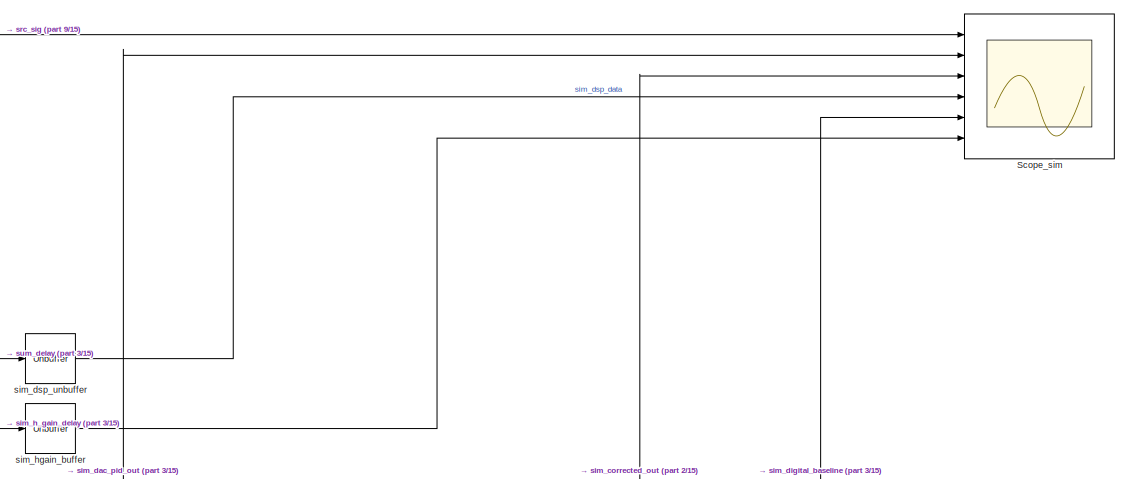
[diagram: root canvas - part 1/15, top right region]
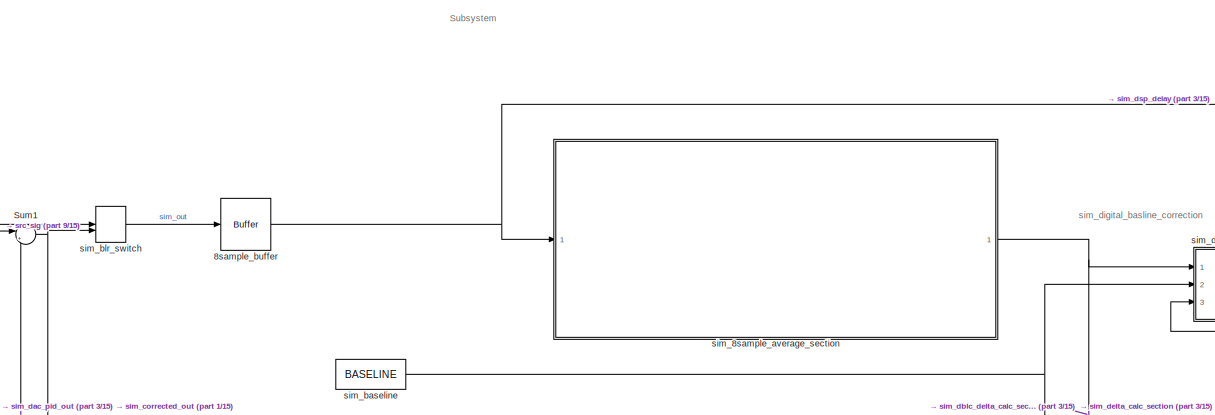
[diagram: root canvas - part 2/15, top center region]
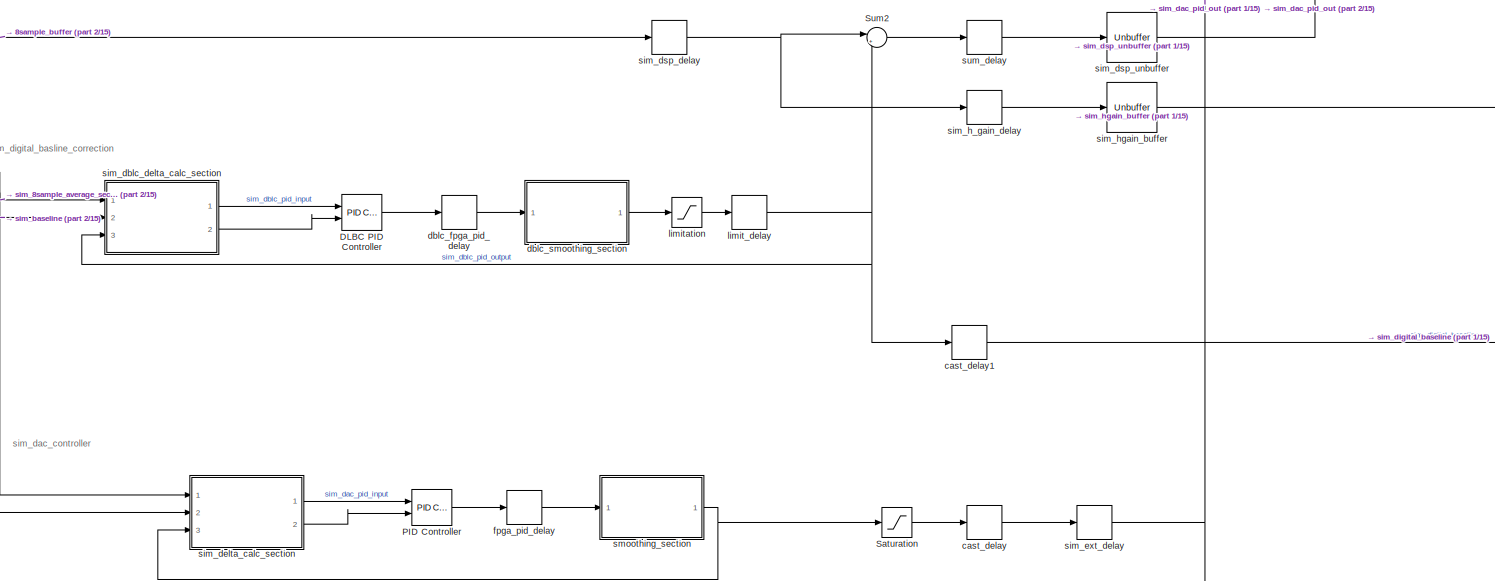
[diagram: root canvas - part 3/15, top center region]
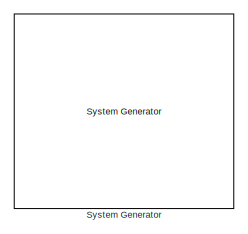
[diagram: root canvas - part 4/15, top left region]
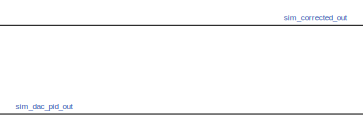
[diagram: root canvas - part 5/15, top center region]
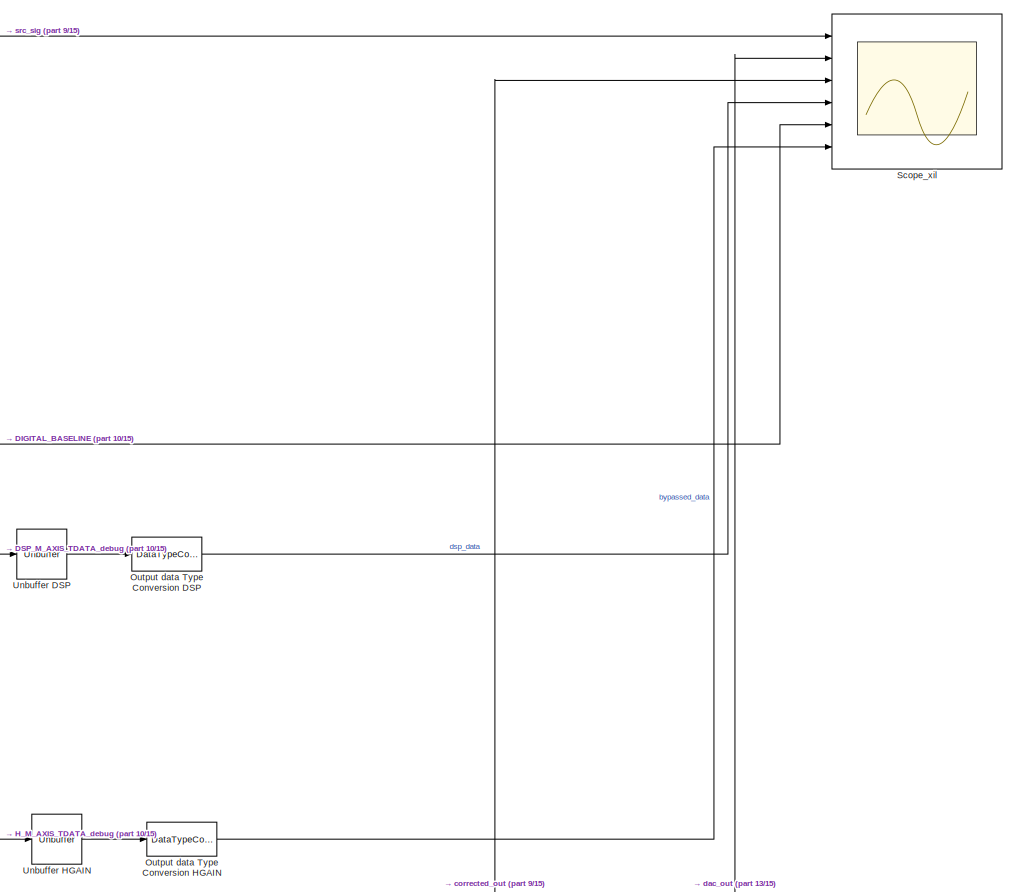
[diagram: root canvas - part 6/15, middle right region]
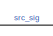
[diagram: root canvas - part 7/15, central region]
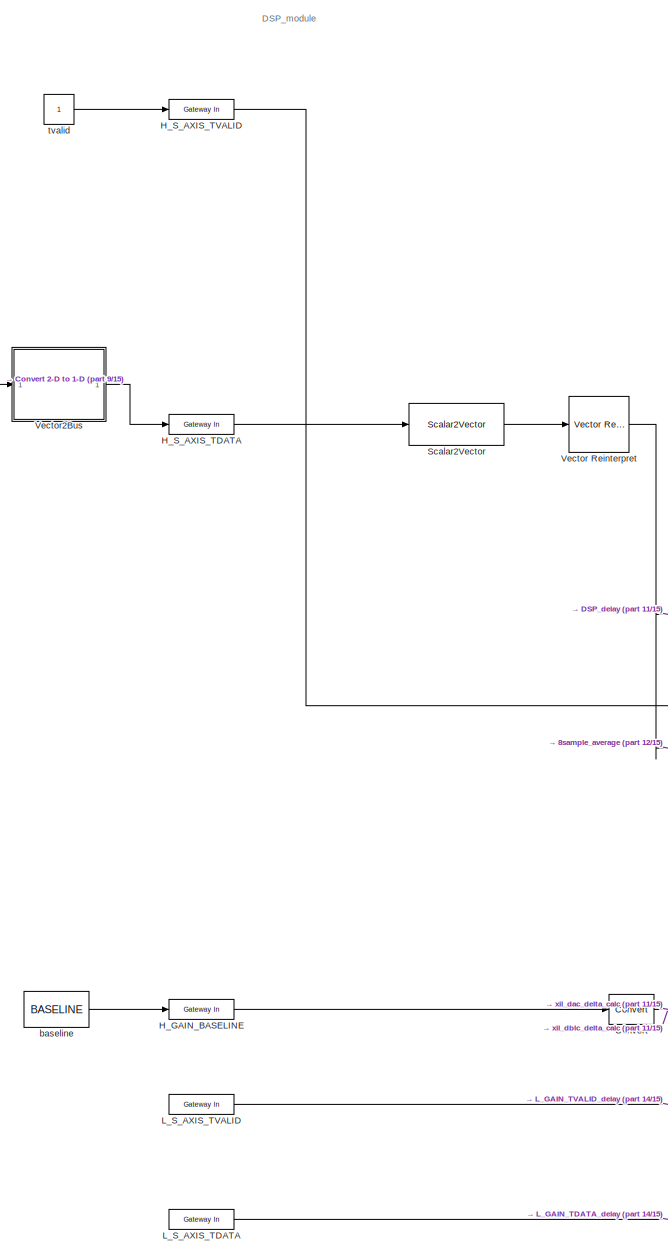
[diagram: root canvas - part 8/15, middle left region]
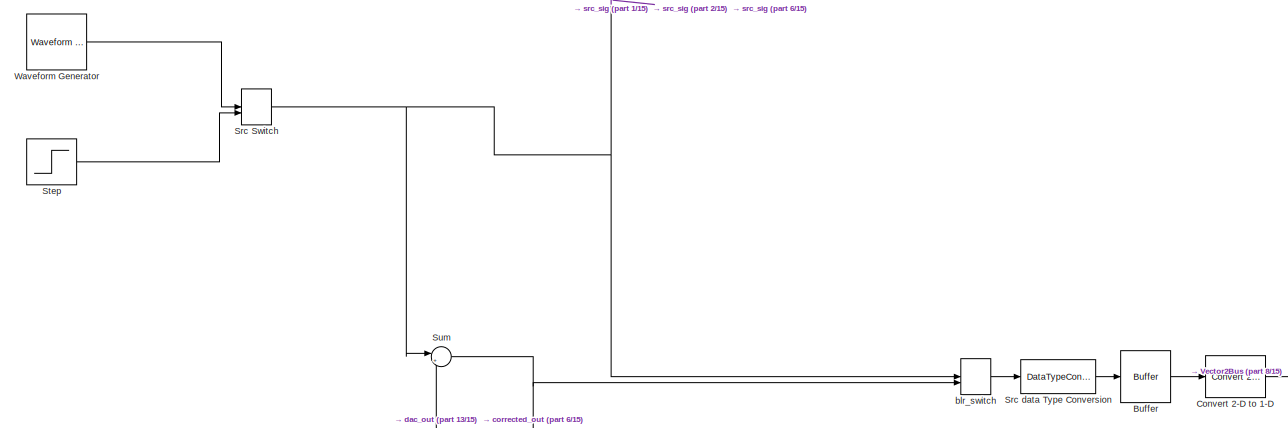
[diagram: root canvas - part 9/15, middle left region]
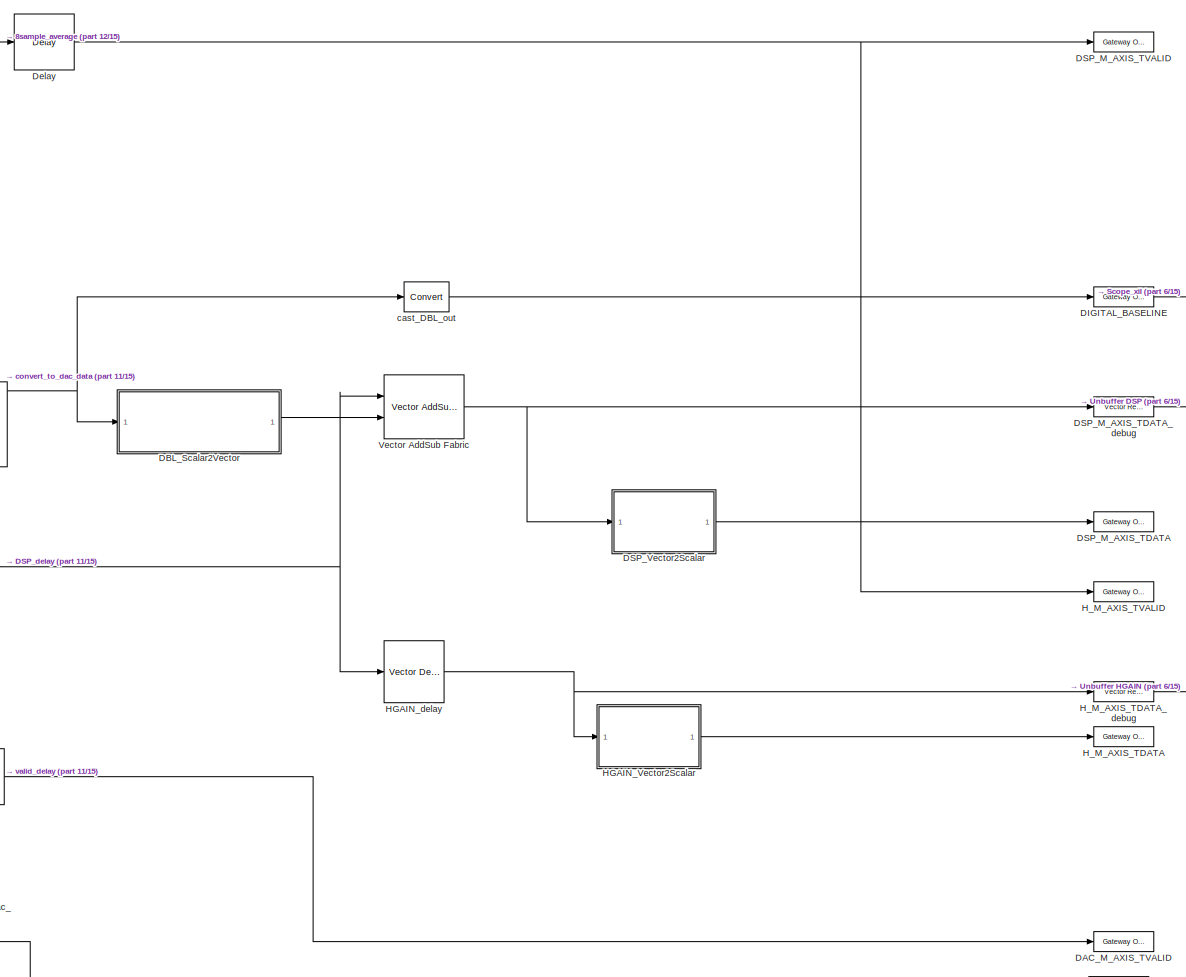
[diagram: root canvas - part 10/15, middle right region]
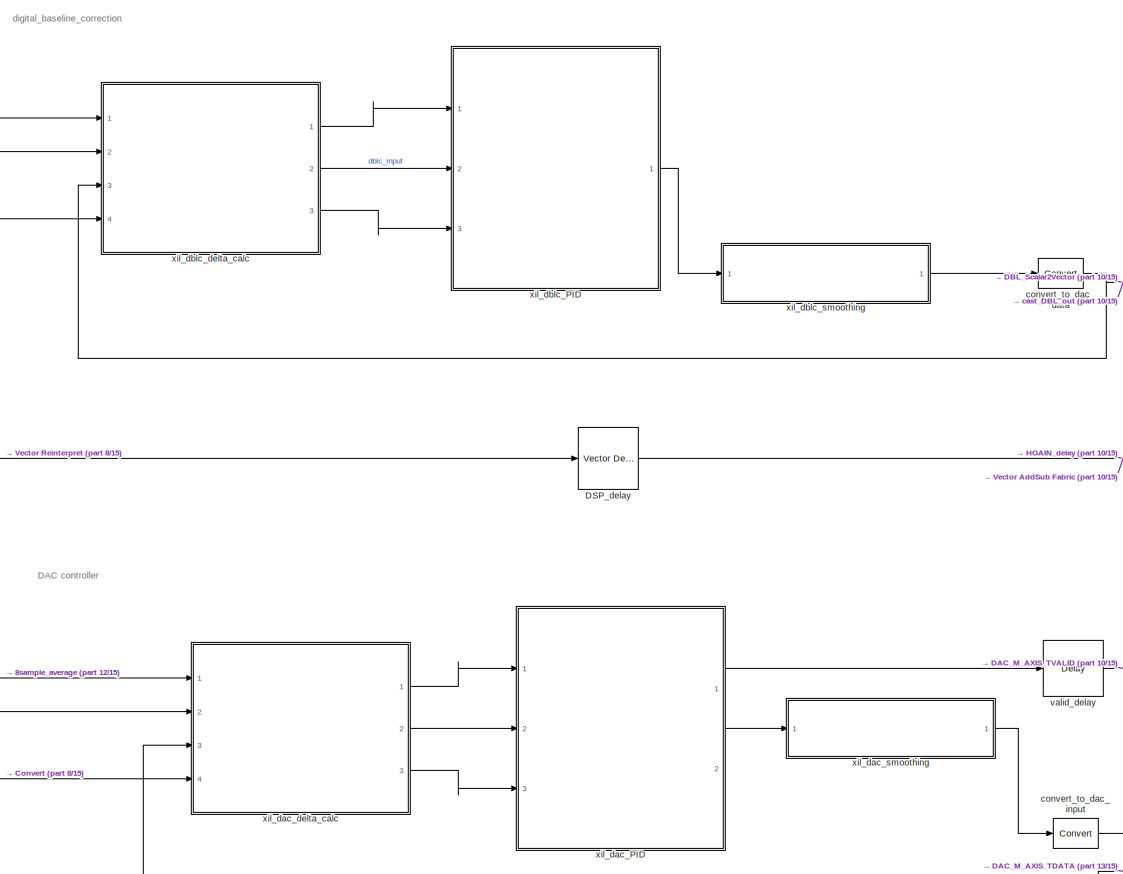
[diagram: root canvas - part 11/15, central region]
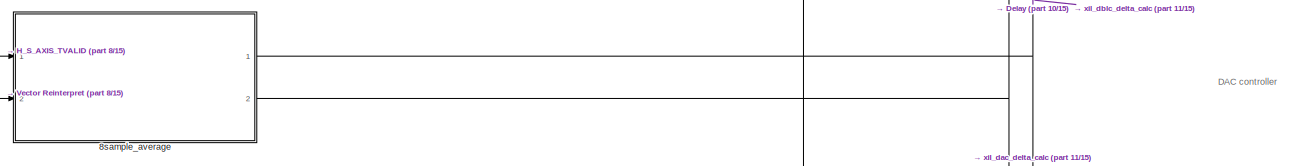
[diagram: root canvas - part 12/15, central region]
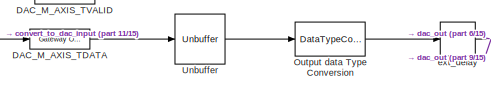
[diagram: root canvas - part 13/15, bottom right region]
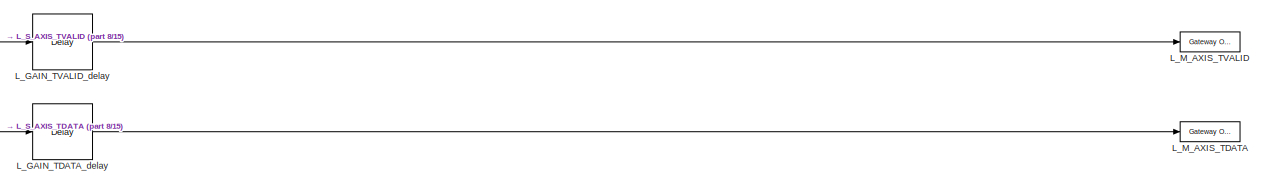
[diagram: root canvas - part 14/15, bottom right region]
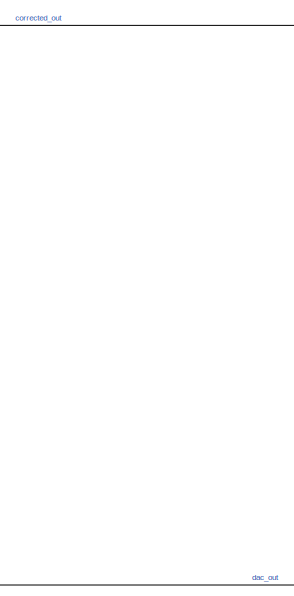
[diagram: root canvas - part 15/15, bottom center region]
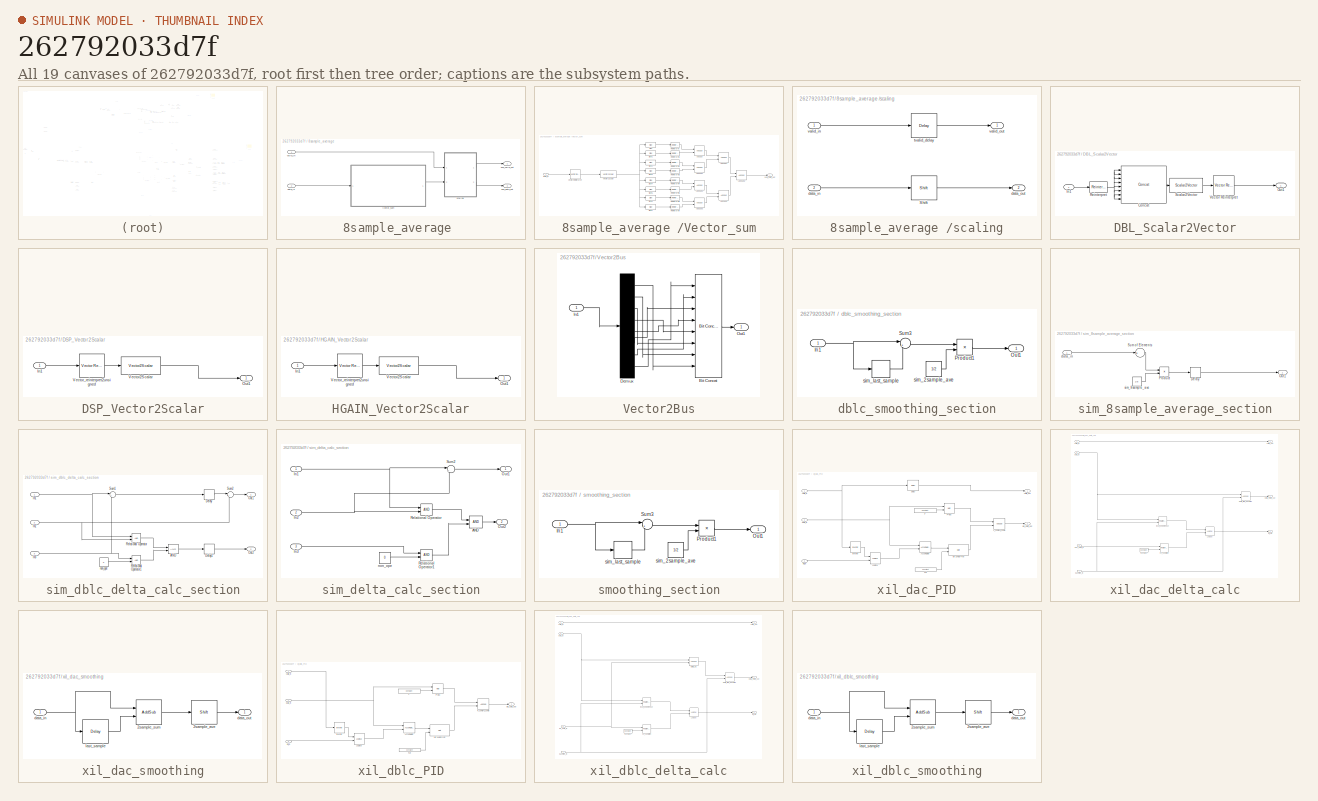
[diagram: thumbnail index - all 19 canvases of the model, root first then tree order]
MODEL slx_262792033d7f
KIND model
CONFIG AbsTol = auto
CONFIG EnableMultiTasking = off
CONFIG FixedStep = auto
CONFIG MaxStep = auto
CONFIG MinStep = auto
CONFIG RelTol = 1e-3
CONFIG SampleTimeConstraint = Unconstrained
CONFIG Solver = VariableStepAuto
CONFIG SolverName = VariableStepAuto
CONFIG StartTime = 0.0
CONFIG StopTime = 100e-6
BLOCK [Reference]  System Generator  REF=xbsIndex_r4/ System Generator
  AttributesFormatString = System\nGenerator
  Ports = []
  SourceBlock = xbsIndex_r4/ System Generator
  SourceType = Xilinx System Generator Block
  Tag = genX
  UserDataPersistent = on
BLOCK [SubSystem] 8sample_average 
  Ports = [2, 2]
  RequestExecContextInheritance = off
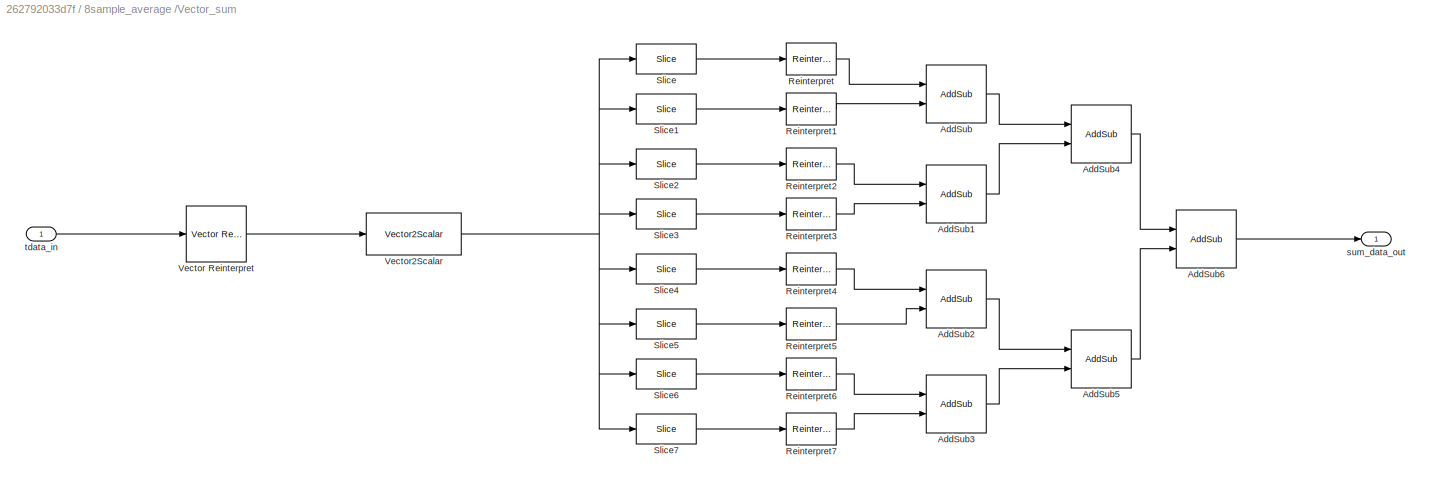
BLOCK [SubSystem] 8sample_average /Vector_sum
  Ports = [1, 1]
  RequestExecContextInheritance = off
BLOCK [Reference] 8sample_average /Vector_sum/AddSub  REF=xbsIndex_r4/AddSub
  Ports = [2, 1]
  SourceBlock = xbsIndex_r4/AddSub
  SourceType = Xilinx Adder/Subtracter Block
BLOCK [Reference] 8sample_average /Vector_sum/AddSub1  REF=xbsIndex_r4/AddSub
  Ports = [2, 1]
  SourceBlock = xbsIndex_r4/AddSub
  SourceType = Xilinx Adder/Subtracter Block
BLOCK [Reference] 8sample_average /Vector_sum/AddSub2  REF=xbsIndex_r4/AddSub
  Ports = [2, 1]
  SourceBlock = xbsIndex_r4/AddSub
  SourceType = Xilinx Adder/Subtracter Block
BLOCK [Reference] 8sample_average /Vector_sum/AddSub3  REF=xbsIndex_r4/AddSub
  Ports = [2, 1]
  SourceBlock = xbsIndex_r4/AddSub
  SourceType = Xilinx Adder/Subtracter Block
BLOCK [Reference] 8sample_average /Vector_sum/AddSub4  REF=xbsIndex_r4/AddSub
  Ports = [2, 1]
  SourceBlock = xbsIndex_r4/AddSub
  SourceType = Xilinx Adder/Subtracter Block
BLOCK [Reference] 8sample_average /Vector_sum/AddSub5  REF=xbsIndex_r4/AddSub
  Ports = [2, 1]
  SourceBlock = xbsIndex_r4/AddSub
  SourceType = Xilinx Adder/Subtracter Block
BLOCK [Reference] 8sample_average /Vector_sum/AddSub6  REF=xbsIndex_r4/AddSub
  Ports = [2, 1]
  SourceBlock = xbsIndex_r4/AddSub
  SourceType = Xilinx Adder/Subtracter Block
BLOCK [Reference] 8sample_average /Vector_sum/Reinterpret  REF=xbsIndex_r4/Reinterpret
  Ports = [1, 1]
  SourceBlock = xbsIndex_r4/Reinterpret
  SourceType = Xilinx Type Reinterpreter Block
BLOCK [Reference] 8sample_average /Vector_sum/Reinterpret1  REF=xbsIndex_r4/Reinterpret
  Ports = [1, 1]
  SourceBlock = xbsIndex_r4/Reinterpret
  SourceType = Xilinx Type Reinterpreter Block
BLOCK [Reference] 8sample_average /Vector_sum/Reinterpret2  REF=xbsIndex_r4/Reinterpret
  Ports = [1, 1]
  SourceBlock = xbsIndex_r4/Reinterpret
  SourceType = Xilinx Type Reinterpreter Block
BLOCK [Reference] 8sample_average /Vector_sum/Reinterpret3  REF=xbsIndex_r4/Reinterpret
  Ports = [1, 1]
  SourceBlock = xbsIndex_r4/Reinterpret
  SourceType = Xilinx Type Reinterpreter Block
BLOCK [Reference] 8sample_average /Vector_sum/Reinterpret4  REF=xbsIndex_r4/Reinterpret
  Ports = [1, 1]
  SourceBlock = xbsIndex_r4/Reinterpret
  SourceType = Xilinx Type Reinterpreter Block
BLOCK [Reference] 8sample_average /Vector_sum/Reinterpret5  REF=xbsIndex_r4/Reinterpret
  Ports = [1, 1]
  SourceBlock = xbsIndex_r4/Reinterpret
  SourceType = Xilinx Type Reinterpreter Block
BLOCK [Reference] 8sample_average /Vector_sum/Reinterpret6  REF=xbsIndex_r4/Reinterpret
  Ports = [1, 1]
  SourceBlock = xbsIndex_r4/Reinterpret
  SourceType = Xilinx Type Reinterpreter Block
BLOCK [Reference] 8sample_average /Vector_sum/Reinterpret7  REF=xbsIndex_r4/Reinterpret
  Ports = [1, 1]
  SourceBlock = xbsIndex_r4/Reinterpret
  SourceType = Xilinx Type Reinterpreter Block
BLOCK [Reference] 8sample_average /Vector_sum/Slice  REF=xbsIndex_r4/Slice
  Ports = [1, 1]
  SourceBlock = xbsIndex_r4/Slice
  SourceType = Xilinx Bit Slice Extractor Block
BLOCK [Reference] 8sample_average /Vector_sum/Slice1  REF=xbsIndex_r4/Slice
  Ports = [1, 1]
  SourceBlock = xbsIndex_r4/Slice
  SourceType = Xilinx Bit Slice Extractor Block
BLOCK [Reference] 8sample_average /Vector_sum/Slice2  REF=xbsIndex_r4/Slice
  Ports = [1, 1]
  SourceBlock = xbsIndex_r4/Slice
  SourceType = Xilinx Bit Slice Extractor Block
BLOCK [Reference] 8sample_average /Vector_sum/Slice3  REF=xbsIndex_r4/Slice
  Ports = [1, 1]
  SourceBlock = xbsIndex_r4/Slice
  SourceType = Xilinx Bit Slice Extractor Block
BLOCK [Reference] 8sample_average /Vector_sum/Slice4  REF=xbsIndex_r4/Slice
  Ports = [1, 1]
  SourceBlock = xbsIndex_r4/Slice
  SourceType = Xilinx Bit Slice Extractor Block
BLOCK [Reference] 8sample_average /Vector_sum/Slice5  REF=xbsIndex_r4/Slice
  Ports = [1, 1]
  SourceBlock = xbsIndex_r4/Slice
  SourceType = Xilinx Bit Slice Extractor Block
BLOCK [Reference] 8sample_average /Vector_sum/Slice6  REF=xbsIndex_r4/Slice
  Ports = [1, 1]
  SourceBlock = xbsIndex_r4/Slice
  SourceType = Xilinx Bit Slice Extractor Block
BLOCK [Reference] 8sample_average /Vector_sum/Slice7  REF=xbsIndex_r4/Slice
  Ports = [1, 1]
  SourceBlock = xbsIndex_r4/Slice
  SourceType = Xilinx Bit Slice Extractor Block
BLOCK [Reference] 8sample_average /Vector_sum/Vector Reinterpret  REF=xrbsSSR_Library/Vector Reinterpret
  Ports = [1, 1]
  SourceBlock = xrbsSSR_Library/Vector Reinterpret
  SourceProductName = Xilinx SSR Blockset
  SourceType = Xilinx Vector Type Reinterpreter Block
BLOCK [Reference] 8sample_average /Vector_sum/Vector2Scalar  REF=xrbsSSR_Library/Vector2Scalar
  Ports = [1, 1]
  SourceBlock = xrbsSSR_Library/Vector2Scalar
  SourceProductName = Xilinx SSR Blockset
  SourceType = Xilinx Vector2Scalar Block
BLOCK [Outport] 8sample_average /Vector_sum/sum_data_out
  IconDisplay = Port number
  OutDataTypeStr = fixdt(1,19,4)
BLOCK [Inport] 8sample_average /Vector_sum/tdata_in
  IconDisplay = Port number
BLOCK [Outport] 8sample_average /ave_data_out
  IconDisplay = Port number
  Port = 2
BLOCK [Outport] 8sample_average /ave_valid_out
  IconDisplay = Port number
BLOCK [Inport] 8sample_average /data_in
  IconDisplay = Port number
  Port = 2
BLOCK [SubSystem] 8sample_average /scaling
  Ports = [2, 2]
  RequestExecContextInheritance = off
BLOCK [Reference] 8sample_average /scaling/Shift  REF=xbsIndex_r4/Shift
  Ports = [1, 1]
  SourceBlock = xbsIndex_r4/Shift
  SourceType = Xilinx Binary Shift Operator Block
BLOCK [Inport] 8sample_average /scaling/data_in
  IconDisplay = Port number
  Port = 2
BLOCK [Outport] 8sample_average /scaling/data_out
  IconDisplay = Port number
  Port = 2
BLOCK [Reference] 8sample_average /scaling/tvalid_delay  REF=xbsIndex_r4/Delay
  Ports = [1, 1]
  SourceBlock = xbsIndex_r4/Delay
  SourceType = Xilinx Delay Block
BLOCK [Inport] 8sample_average /scaling/valid_in
  IconDisplay = Port number
BLOCK [Outport] 8sample_average /scaling/valid_out
  IconDisplay = Port number
BLOCK [Inport] 8sample_average /valid_in
  IconDisplay = Port number
BLOCK [Buffer] 8sample_buffer
  N = 8
  OutputFrames = off
BLOCK [Buffer] Buffer
  N = 8
  OutputFrames = off
BLOCK [Reference] Convert  REF=xbsIndex_r4/Convert
  Ports = [1, 1]
  SourceBlock = xbsIndex_r4/Convert
  SourceType = Xilinx Type Converter Block
BLOCK [Reference] Convert 2-D to 1-D  REF=dspsigattribs/Convert 2-D to 1-D
  Ports = [1, 1]
  SourceBlock = dspsigattribs/Convert 2-D to 1-D
  SourceProductBaseCode = DS
  SourceProductName = DSP System Toolbox
  SourceType = Convert 2-D to 1-D
BLOCK [Reference] DAC_M_AXIS_TDATA  REF=xbsIndex_r4/Gateway Out
  Ports = [1, 1]
  SourceBlock = xbsIndex_r4/Gateway Out
  SourceType = Xilinx Gateway Out Block
BLOCK [Reference] DAC_M_AXIS_TVALID  REF=xbsIndex_r4/Gateway Out
  Ports = [1, 1]
  SourceBlock = xbsIndex_r4/Gateway Out
  SourceType = Xilinx Gateway Out Block
BLOCK [SubSystem] DBL_Scalar2Vector
  Ports = [1, 1]
  RequestExecContextInheritance = off
BLOCK [Reference] DBL_Scalar2Vector/Concat  REF=xbsIndex_r4/Concat
  Ports = [8, 1]
  SourceBlock = xbsIndex_r4/Concat
  SourceType = Xilinx Bus Concatenator Block
BLOCK [Inport] DBL_Scalar2Vector/In1
  IconDisplay = Port number
BLOCK [Outport] DBL_Scalar2Vector/Out1
  IconDisplay = Port number
BLOCK [Reference] DBL_Scalar2Vector/Reinterpret  REF=xbsIndex_r4/Reinterpret
  Ports = [1, 1]
  SourceBlock = xbsIndex_r4/Reinterpret
  SourceType = Xilinx Type Reinterpreter Block
BLOCK [Reference] DBL_Scalar2Vector/Scalar2Vector  REF=xrbsSSR_Library/Scalar2Vector
  Ports = [1, 1]
  SourceBlock = xrbsSSR_Library/Scalar2Vector
  SourceProductName = Xilinx SSR Blockset
  SourceType = Xilinx Scalar2Vector Block
BLOCK [Reference] DBL_Scalar2Vector/Vector Reinterpret  REF=xrbsSSR_Library/Vector Reinterpret
  Ports = [1, 1]
  SourceBlock = xrbsSSR_Library/Vector Reinterpret
  SourceProductName = Xilinx SSR Blockset
  SourceType = Xilinx Vector Type Reinterpreter Block
BLOCK [Reference] DIGITAL_BASELINE  REF=xbsIndex_r4/Gateway Out
  Ports = [1, 1]
  SourceBlock = xbsIndex_r4/Gateway Out
  SourceType = Xilinx Gateway Out Block
BLOCK [Reference] DLBC PID Controller  REF=simulink/Continuous/PID Controller
  Ports = [2, 1]
  SourceBlock = simulink/Continuous/PID Controller
  SourceProductBaseCode = SL
  SourceProductName = Simulink
  SourceType = PID 1dof
BLOCK [Reference] DSP_M_AXIS_TDATA  REF=xbsIndex_r4/Gateway Out
  Ports = [1, 1]
  SourceBlock = xbsIndex_r4/Gateway Out
  SourceType = Xilinx Gateway Out Block
BLOCK [Reference] DSP_M_AXIS_TDATA_debug  REF=xrbsSSR_Library/Vector Real Gateway Out
  Ports = [1, 1]
  SourceBlock = xrbsSSR_Library/Vector Real Gateway Out
  SourceProductName = Xilinx SSR Blockset
  SourceType = Xilinx Vector Gateway Out Block
BLOCK [Reference] DSP_M_AXIS_TVALID  REF=xbsIndex_r4/Gateway Out
  Ports = [1, 1]
  SourceBlock = xbsIndex_r4/Gateway Out
  SourceType = Xilinx Gateway Out Block
BLOCK [SubSystem] DSP_Vector2Scalar
  Ports = [1, 1]
  RequestExecContextInheritance = off
BLOCK [Inport] DSP_Vector2Scalar/In1
  IconDisplay = Port number
BLOCK [Outport] DSP_Vector2Scalar/Out1
  IconDisplay = Port number
BLOCK [Reference] DSP_Vector2Scalar/Vector2Scalar  REF=xrbsSSR_Library/Vector2Scalar
  Ports = [1, 1]
  SourceBlock = xrbsSSR_Library/Vector2Scalar
  SourceProductName = Xilinx SSR Blockset
  SourceType = Xilinx Vector2Scalar Block
BLOCK [Reference] DSP_Vector2Scalar/Vector_reinterpret2unsigned  REF=xrbsSSR_Library/Vector Reinterpret
  Ports = [1, 1]
  SourceBlock = xrbsSSR_Library/Vector Reinterpret
  SourceProductName = Xilinx SSR Blockset
  SourceType = Xilinx Vector Type Reinterpreter Block
BLOCK [Reference] DSP_delay  REF=xrbsSSR_Library/Vector Delay
  Ports = [1, 1]
  SourceBlock = xrbsSSR_Library/Vector Delay
  SourceProductName = Xilinx SSR Blockset
  SourceType = Xilinx Vector Delay Block
BLOCK [Reference] Delay  REF=xbsIndex_r4/Delay
  Ports = [1, 1]
  SourceBlock = xbsIndex_r4/Delay
  SourceType = Xilinx Delay Block
BLOCK [SubSystem] HGAIN_Vector2Scalar
  Ports = [1, 1]
  RequestExecContextInheritance = off
BLOCK [Inport] HGAIN_Vector2Scalar/In1
  IconDisplay = Port number
BLOCK [Outport] HGAIN_Vector2Scalar/Out1
  IconDisplay = Port number
BLOCK [Reference] HGAIN_Vector2Scalar/Vector2Scalar  REF=xrbsSSR_Library/Vector2Scalar
  Ports = [1, 1]
  SourceBlock = xrbsSSR_Library/Vector2Scalar
  SourceProductName = Xilinx SSR Blockset
  SourceType = Xilinx Vector2Scalar Block
BLOCK [Reference] HGAIN_Vector2Scalar/Vector_reinterpret2unsigned  REF=xrbsSSR_Library/Vector Reinterpret
  Ports = [1, 1]
  SourceBlock = xrbsSSR_Library/Vector Reinterpret
  SourceProductName = Xilinx SSR Blockset
  SourceType = Xilinx Vector Type Reinterpreter Block
BLOCK [Reference] HGAIN_delay  REF=xrbsSSR_Library/Vector Delay
  Ports = [1, 1]
  SourceBlock = xrbsSSR_Library/Vector Delay
  SourceProductName = Xilinx SSR Blockset
  SourceType = Xilinx Vector Delay Block
BLOCK [Reference] H_GAIN_BASELINE  REF=xbsIndex_r4/Gateway In
  Ports = [1, 1]
  SourceBlock = xbsIndex_r4/Gateway In
  SourceType = Xilinx Gateway In Block
BLOCK [Reference] H_M_AXIS_TDATA  REF=xbsIndex_r4/Gateway Out
  Ports = [1, 1]
  SourceBlock = xbsIndex_r4/Gateway Out
  SourceType = Xilinx Gateway Out Block
BLOCK [Reference] H_M_AXIS_TDATA_debug  REF=xrbsSSR_Library/Vector Real Gateway Out
  Ports = [1, 1]
  SourceBlock = xrbsSSR_Library/Vector Real Gateway Out
  SourceProductName = Xilinx SSR Blockset
  SourceType = Xilinx Vector Gateway Out Block
BLOCK [Reference] H_M_AXIS_TVALID  REF=xbsIndex_r4/Gateway Out
  Ports = [1, 1]
  SourceBlock = xbsIndex_r4/Gateway Out
  SourceType = Xilinx Gateway Out Block
BLOCK [Reference] H_S_AXIS_TDATA  REF=xbsIndex_r4/Gateway In
  Ports = [1, 1]
  SourceBlock = xbsIndex_r4/Gateway In
  SourceType = Xilinx Gateway In Block
BLOCK [Reference] H_S_AXIS_TVALID  REF=xbsIndex_r4/Gateway In
  Ports = [1, 1]
  SourceBlock = xbsIndex_r4/Gateway In
  SourceType = Xilinx Gateway In Block
BLOCK [Reference] L_GAIN_TDATA_delay  REF=xbsIndex_r4/Delay
  Ports = [1, 1]
  SourceBlock = xbsIndex_r4/Delay
  SourceType = Xilinx Delay Block
BLOCK [Reference] L_GAIN_TVALID_delay  REF=xbsIndex_r4/Delay
  Ports = [1, 1]
  SourceBlock = xbsIndex_r4/Delay
  SourceType = Xilinx Delay Block
BLOCK [Reference] L_M_AXIS_TDATA  REF=xbsIndex_r4/Gateway Out
  Ports = [1, 1]
  SourceBlock = xbsIndex_r4/Gateway Out
  SourceType = Xilinx Gateway Out Block
BLOCK [Reference] L_M_AXIS_TVALID  REF=xbsIndex_r4/Gateway Out
  Ports = [1, 1]
  SourceBlock = xbsIndex_r4/Gateway Out
  SourceType = Xilinx Gateway Out Block
BLOCK [Reference] L_S_AXIS_TDATA  REF=xbsIndex_r4/Gateway In
  Ports = [1, 1]
  SourceBlock = xbsIndex_r4/Gateway In
  SourceType = Xilinx Gateway In Block
BLOCK [Reference] L_S_AXIS_TVALID  REF=xbsIndex_r4/Gateway In
  Ports = [1, 1]
  SourceBlock = xbsIndex_r4/Gateway In
  SourceType = Xilinx Gateway In Block
BLOCK [DataTypeConversion] Output data Type Conversion
  OutDataTypeStr = double
  RndMeth = Floor
  SaturateOnIntegerOverflow = off
BLOCK [DataTypeConversion] Output data Type Conversion DSP
  OutDataTypeStr = double
  RndMeth = Floor
  SaturateOnIntegerOverflow = off
BLOCK [DataTypeConversion] Output data Type Conversion HGAIN
  OutDataTypeStr = double
  RndMeth = Floor
  SaturateOnIntegerOverflow = off
BLOCK [Reference] PID Controller  REF=simulink/Continuous/PID Controller
  Ports = [2, 1]
  SourceBlock = simulink/Continuous/PID Controller
  SourceProductBaseCode = SL
  SourceProductName = Simulink
  SourceType = PID 1dof
BLOCK [Saturate] Saturation
  InputPortMap = u0
  LowerLimit = -8192
  Ports = [1, 1]
  UpperLimit = 8191
BLOCK [Reference] Scalar2Vector  REF=xrbsSSR_Library/Scalar2Vector
  Ports = [1, 1]
  SourceBlock = xrbsSSR_Library/Scalar2Vector
  SourceProductName = Xilinx SSR Blockset
  SourceType = Xilinx Scalar2Vector Block
BLOCK [Scope] Scope_sim
  Floating = off
  NumInputPorts = 6
  Ports = [6]
  ScopeSpecificationString = Simulink.scopes.TimeScopeBlockCfg('CurrentConfiguration', extmgr.ConfigurationSet(extmgr.Configuration('Core','General UI',true),extmgr.Configuration('Core','Source UI',true),extmgr.Configuration('Sources','WiredSimulink',true,'DataLoggingVariableName','ScopeData1'),extmgr.Configuration('Visuals','Time Domain',true,'SerializedDisplays',{struct('MinYLimReal','-1152.00000','MaxYLimReal','128.00000',...<+3128ch>
BLOCK [Scope] Scope_xil
  Floating = off
  NumInputPorts = 6
  Ports = [6]
  ScopeSpecificationString = Simulink.scopes.TimeScopeBlockCfg('CurrentConfiguration', extmgr.ConfigurationSet(extmgr.Configuration('Core','General UI',true),extmgr.Configuration('Core','Source UI',true),extmgr.Configuration('Sources','WiredSimulink',true),extmgr.Configuration('Visuals','Time Domain',true,'SerializedDisplays',{struct('MinYLimReal','-1152.00000','MaxYLimReal','128.00000','YLabelReal','','MinYLimMag','  0.00000...<+3101ch>
BLOCK [ManualSwitch] Src Switch
  CurrentSetting = 0
BLOCK [DataTypeConversion] Src data Type Conversion
  OutDataTypeStr = fixdt(1,16,4)
  OutMax = 2047
  OutMin = -2048
  RndMeth = Floor
  SaturateOnIntegerOverflow = off
BLOCK [Step] Step
  After = -1024
  SampleTime = 1e-9
  Time = 50e-6
BLOCK [Sum] Sum
  AccumDataTypeStr = Inherit: Same as first input
  IconShape = round
  InputSameDT = off
  Inputs = |+-
  OutDataTypeStr = Inherit: Inherit via internal rule
  Ports = [2, 1]
  SaturateOnIntegerOverflow = off
BLOCK [Sum] Sum1
  AccumDataTypeStr = Inherit: Same as first input
  IconShape = round
  InputSameDT = off
  Inputs = |+-
  Ports = [2, 1]
  SaturateOnIntegerOverflow = off
BLOCK [Sum] Sum2
  IconShape = round
  InputSameDT = off
  Inputs = |+-
  OutDataTypeStr = Inherit: Inherit via internal rule
  Ports = [2, 1]
  SaturateOnIntegerOverflow = off
BLOCK [Unbuffer] Unbuffer
  Ports = [1, 1]
BLOCK [Unbuffer] Unbuffer DSP
  Ports = [1, 1]
BLOCK [Unbuffer] Unbuffer HGAIN
  Ports = [1, 1]
BLOCK [Reference] Vector AddSub Fabric  REF=xrbsSSR_Library/Vector AddSub Fabric
  Ports = [2, 1]
  SourceBlock = xrbsSSR_Library/Vector AddSub Fabric
  SourceProductName = Xilinx SSR Blockset
  SourceType = Xilinx Vector Adder/Subtracter Block
BLOCK [Reference] Vector Reinterpret  REF=xrbsSSR_Library/Vector Reinterpret
  Ports = [1, 1]
  SourceBlock = xrbsSSR_Library/Vector Reinterpret
  SourceProductName = Xilinx SSR Blockset
  SourceType = Xilinx Vector Type Reinterpreter Block
BLOCK [SubSystem] Vector2Bus
  Ports = [1, 1]
  RequestExecContextInheritance = off
BLOCK [Reference] Vector2Bus/Bit Concat  REF=hdlsllib/Logic and Bit
Operations/Bit Concat
  Ports = [8, 1]
  SourceBlock = hdlsllib/Logic and Bit\nOperations/Bit Concat
  SourceProductBaseCode = HD
  SourceProductName = HDL Coder
  SourceType = Bit Concat
BLOCK [Demux] Vector2Bus/Demux
  DisplayOption = bar
  Outputs = 8
  Ports = [1, 8]
BLOCK [Inport] Vector2Bus/In1
  IconDisplay = Port number
BLOCK [Outport] Vector2Bus/Out1
  IconDisplay = Port number
BLOCK [Reference] Waveform Generator  REF=simulink/Sources/Waveform
Generator
  Ports = [0, 1]
  SourceBlock = simulink/Sources/Waveform\nGenerator
  SourceProductBaseCode = SL
  SourceProductName = Simulink
  SourceType = WaveformGenerator
BLOCK [Constant] baseline
  OutDataTypeStr = Inherit: Inherit via back propagation
  SampleTime = 1/125e6
  Value = BASELINE
  VectorParams1D = off
BLOCK [ManualSwitch] blr_switch
  CurrentSetting = 0
BLOCK [Reference] cast_DBL_out  REF=xbsIndex_r4/Convert
  Ports = [1, 1]
  SourceBlock = xbsIndex_r4/Convert
  SourceType = Xilinx Type Converter Block
BLOCK [Delay] cast_delay
  DelayLength = 1
  InitialCondition = 0
  InputPortMap = u0
  InputProcessing = Columns as channels (frame based)
  Ports = [1, 1]
BLOCK [Delay] cast_delay1
  DelayLength = 1
  InitialCondition = 0
  InputPortMap = u0
  InputProcessing = Columns as channels (frame based)
  Ports = [1, 1]
BLOCK [Reference] convert_to_dac_data  REF=xbsIndex_r4/Convert
  Ports = [1, 1]
  SourceBlock = xbsIndex_r4/Convert
  SourceType = Xilinx Type Converter Block
BLOCK [Reference] convert_to_dac_input  REF=xbsIndex_r4/Convert
  Ports = [1, 1]
  SourceBlock = xbsIndex_r4/Convert
  SourceType = Xilinx Type Converter Block
BLOCK [Delay] dblc_fpga_pid_delay
  DelayLength = 4
  InitialCondition = 0
  InputPortMap = u0
  Ports = [1, 1]
BLOCK [SubSystem] dblc_smoothing_section
  Ports = [1, 1]
  RequestExecContextInheritance = off
BLOCK [Inport] dblc_smoothing_section/In1
  IconDisplay = Port number
BLOCK [Outport] dblc_smoothing_section/Out1
  IconDisplay = Port number
BLOCK [Product] dblc_smoothing_section/Product1
  InputSameDT = off
  OutDataTypeStr = Inherit: Inherit via internal rule
  Ports = [2, 1]
  RndMeth = Floor
  SaturateOnIntegerOverflow = off
BLOCK [Sum] dblc_smoothing_section/Sum3
  AccumDataTypeStr = Inherit: Same as first input
  IconShape = round
  InputSameDT = off
  Inputs = |++
  OutDataTypeStr = Inherit: Inherit via internal rule
  Ports = [2, 1]
  SaturateOnIntegerOverflow = off
BLOCK [Constant] dblc_smoothing_section/sim_2sample_ave
  OutDataTypeStr = Inherit: Inherit via back propagation
  SampleTime = 1/125e6
  Value = 1/2
  VectorParams1D = off
BLOCK [Delay] dblc_smoothing_section/sim_last_sample
  DelayLength = 1
  InitialCondition = 0
  InputPortMap = u0
  Ports = [1, 1]
BLOCK [Delay] ext_delay
  DelayLength = 3
  InitialCondition = 0
  InputPortMap = u0
  Ports = [1, 1]
BLOCK [Delay] fpga_pid_delay
  DelayLength = 4
  InitialCondition = 0
  InputPortMap = u0
  InputProcessing = Columns as channels (frame based)
  Ports = [1, 1]
BLOCK [Delay] limit_delay
  DelayLength = 1
  InitialCondition = 0
  InputPortMap = u0
  Ports = [1, 1]
BLOCK [Saturate] limitation
  InputPortMap = u0
  LowerLimit = -2048
  Ports = [1, 1]
  UpperLimit = 2047
BLOCK [SubSystem] sim_8sample_average_section
  Ports = [1, 1]
  RequestExecContextInheritance = off
BLOCK [Delay] sim_8sample_average_section/Delay
  DelayLength = 1
  InitialCondition = 0
  InputPortMap = u0
  Ports = [1, 1]
BLOCK [Outport] sim_8sample_average_section/Out1
  IconDisplay = Port number
BLOCK [Product] sim_8sample_average_section/Product
  InputSameDT = off
  OutDataTypeStr = Inherit: Inherit via internal rule
  Ports = [2, 1]
  RndMeth = Floor
  SaturateOnIntegerOverflow = off
BLOCK [Sum] sim_8sample_average_section/Sum of Elements
  InputSameDT = off
  Inputs = +
  OutDataTypeStr = Inherit: Inherit via internal rule
  Ports = [1, 1]
  SaturateOnIntegerOverflow = off
BLOCK [Inport] sim_8sample_average_section/data_in
  IconDisplay = Port number
BLOCK [Constant] sim_8sample_average_section/sim_8sample_ave
  OutDataTypeStr = Inherit: Inherit via back propagation
  SampleTime = 1/125e6
  Value = 1/8
  VectorParams1D = off
BLOCK [Constant] sim_baseline
  OutDataTypeStr = Inherit: Inherit via back propagation
  SampleTime = 1/125e6
  Value = BASELINE
  VectorParams1D = off
BLOCK [ManualSwitch] sim_blr_switch
  CurrentSetting = 0
BLOCK [SubSystem] sim_dblc_delta_calc_section
  Ports = [3, 2]
  RequestExecContextInheritance = off
BLOCK [Logic] sim_dblc_delta_calc_section/AND
  AllPortsSameDT = off
  IconShape = distinctive
  OutDataTypeStr = boolean
  Ports = [2, 1]
BLOCK [Delay] sim_dblc_delta_calc_section/Delay
  DelayLength = 1
  InitialCondition = 0
  InputPortMap = u0
  InputProcessing = Columns as channels (frame based)
  Ports = [1, 1]
BLOCK [Delay] sim_dblc_delta_calc_section/Delay1
  DelayLength = 1
  InitialCondition = 0
  InputPortMap = u0
  InputProcessing = Columns as channels (frame based)
  Ports = [1, 1]
BLOCK [Inport] sim_dblc_delta_calc_section/In1
  IconDisplay = Port number
BLOCK [Inport] sim_dblc_delta_calc_section/In2
  IconDisplay = Port number
  Port = 2
BLOCK [Inport] sim_dblc_delta_calc_section/In3
  IconDisplay = Port number
  Port = 3
BLOCK [Outport] sim_dblc_delta_calc_section/Out1
  IconDisplay = Port number
BLOCK [Outport] sim_dblc_delta_calc_section/Out2
  IconDisplay = Port number
  Port = 2
BLOCK [RelationalOperator] sim_dblc_delta_calc_section/Relational Operator
  InputSameDT = off
  OutDataTypeStr = boolean
  Ports = [2, 1]
  RndMeth = Simplest
BLOCK [RelationalOperator] sim_dblc_delta_calc_section/Relational Operator1
  InputSameDT = off
  OutDataTypeStr = boolean
  Ports = [2, 1]
  RndMeth = Simplest
BLOCK [Sum] sim_dblc_delta_calc_section/Sum1
  AccumDataTypeStr = Inherit: Same as first input
  IconShape = round
  InputSameDT = off
  Inputs = |+-
  OutDataTypeStr = Inherit: Inherit via internal rule
  Ports = [2, 1]
  SaturateOnIntegerOverflow = off
BLOCK [Sum] sim_dblc_delta_calc_section/Sum2
  AccumDataTypeStr = Inherit: Same as first input
  IconShape = round
  InputSameDT = off
  Inputs = |+-
  OutDataTypeStr = Inherit: Inherit via internal rule
  Ports = [2, 1]
  SaturateOnIntegerOverflow = off
BLOCK [Constant] sim_dblc_delta_calc_section/non_ope
  OutDataTypeStr = Inherit: Inherit via back propagation
  SampleTime = 1/125e6
  Value = 0
  VectorParams1D = off
BLOCK [SubSystem] sim_delta_calc_section
  Ports = [3, 2]
  RequestExecContextInheritance = off
BLOCK [Logic] sim_delta_calc_section/AND
  AllPortsSameDT = off
  IconShape = distinctive
  OutDataTypeStr = boolean
  Ports = [2, 1]
BLOCK [Inport] sim_delta_calc_section/In1
  IconDisplay = Port number
BLOCK [Inport] sim_delta_calc_section/In2
  IconDisplay = Port number
  Port = 2
BLOCK [Inport] sim_delta_calc_section/In3
  IconDisplay = Port number
  Port = 3
BLOCK [Outport] sim_delta_calc_section/Out1
  IconDisplay = Port number
BLOCK [Outport] sim_delta_calc_section/Out2
  IconDisplay = Port number
  Port = 2
BLOCK [RelationalOperator] sim_delta_calc_section/Relational Operator
  InputSameDT = off
  OutDataTypeStr = boolean
  Ports = [2, 1]
  RndMeth = Simplest
BLOCK [RelationalOperator] sim_delta_calc_section/Relational Operator1
  InputSameDT = off
  OutDataTypeStr = boolean
  Ports = [2, 1]
  RndMeth = Simplest
BLOCK [Sum] sim_delta_calc_section/Sum2
  AccumDataTypeStr = Inherit: Same as first input
  IconShape = round
  InputSameDT = off
  Inputs = |+-
  OutDataTypeStr = Inherit: Inherit via internal rule
  Ports = [2, 1]
  SaturateOnIntegerOverflow = off
BLOCK [Constant] sim_delta_calc_section/non_ope
  OutDataTypeStr = Inherit: Inherit via back propagation
  SampleTime = 1/125e6
  Value = 0
  VectorParams1D = off
BLOCK [Delay] sim_dsp_delay
  DelayLength = 6
  InitialCondition = 0
  InputPortMap = u0
  Ports = [1, 1]
  SampleTime = 8e-9
BLOCK [Unbuffer] sim_dsp_unbuffer
  Ports = [1, 1]
BLOCK [Delay] sim_ext_delay
  DelayLength = 3
  InitialCondition = 0
  InputPortMap = u0
  InputProcessing = Columns as channels (frame based)
  Ports = [1, 1]
BLOCK [Delay] sim_h_gain_delay
  DelayLength = 1
  InitialCondition = 0
  InputPortMap = u0
  Ports = [1, 1]
BLOCK [Unbuffer] sim_hgain_buffer
  Ports = [1, 1]
BLOCK [SubSystem] smoothing_section
  Ports = [1, 1]
  RequestExecContextInheritance = off
BLOCK [Inport] smoothing_section/In1
  IconDisplay = Port number
BLOCK [Outport] smoothing_section/Out1
  IconDisplay = Port number
BLOCK [Product] smoothing_section/Product1
  InputSameDT = off
  OutDataTypeStr = Inherit: Inherit via internal rule
  Ports = [2, 1]
  RndMeth = Floor
  SaturateOnIntegerOverflow = off
BLOCK [Sum] smoothing_section/Sum3
  AccumDataTypeStr = Inherit: Same as first input
  IconShape = round
  InputSameDT = off
  Inputs = |++
  OutDataTypeStr = Inherit: Inherit via internal rule
  Ports = [2, 1]
  SaturateOnIntegerOverflow = off
BLOCK [Constant] smoothing_section/sim_2sample_ave
  OutDataTypeStr = Inherit: Inherit via back propagation
  SampleTime = 1/125e6
  Value = 1/2
  VectorParams1D = off
BLOCK [Delay] smoothing_section/sim_last_sample
  DelayLength = 1
  InitialCondition = 0
  InputPortMap = u0
  Ports = [1, 1]
BLOCK [Delay] sum_delay
  DelayLength = 1
  InitialCondition = 0
  InputPortMap = u0
  Ports = [1, 1]
BLOCK [Constant] tvalid
  OutDataTypeStr = Inherit: Inherit via back propagation
  SampleTime = 1/125e6
  VectorParams1D = off
BLOCK [Reference] valid_delay  REF=xbsIndex_r4/Delay
  Ports = [1, 1]
  SourceBlock = xbsIndex_r4/Delay
  SourceType = Xilinx Delay Block
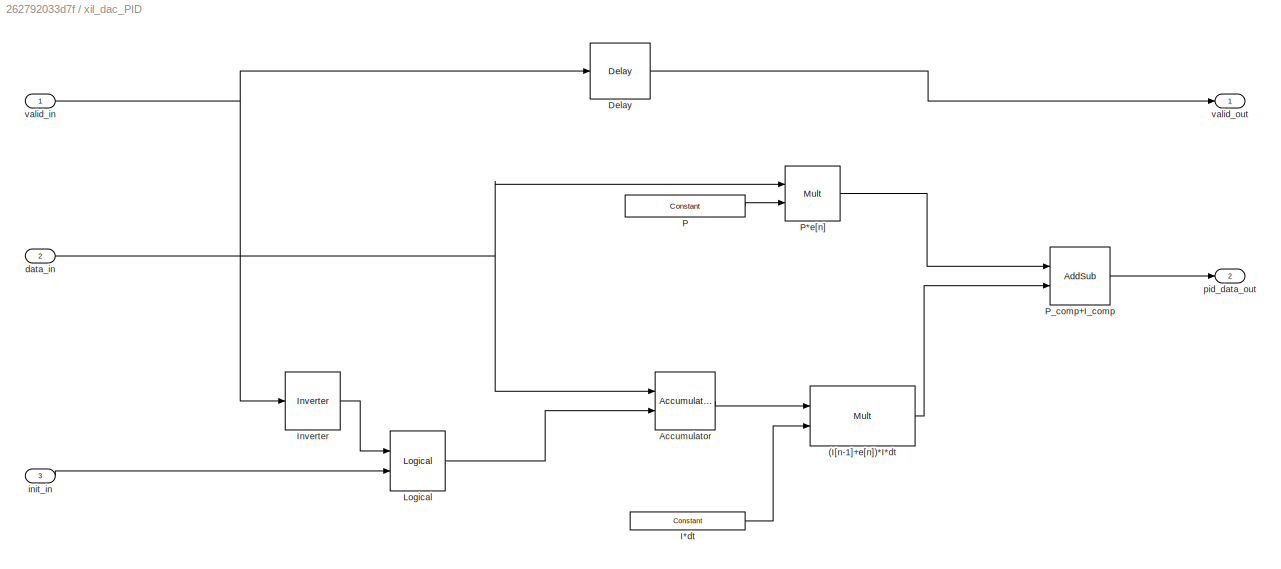
BLOCK [SubSystem] xil_dac_PID
  Ports = [3, 2]
  RequestExecContextInheritance = off
BLOCK [Reference] xil_dac_PID/(I[n-1]+e[n])*I*dt  REF=xbsIndex_r4/Mult
  Ports = [2, 1]
  SourceBlock = xbsIndex_r4/Mult
  SourceType = Xilinx Multiplier Block
BLOCK [Reference] xil_dac_PID/Accumulator  REF=xbsIndex_r4/Accumulator
  Ports = [2, 1]
  SourceBlock = xbsIndex_r4/Accumulator
  SourceType = Xilinx Accumulator Block
BLOCK [Reference] xil_dac_PID/Delay  REF=xbsIndex_r4/Delay
  Ports = [1, 1]
  SourceBlock = xbsIndex_r4/Delay
  SourceType = Xilinx Delay Block
BLOCK [Reference] xil_dac_PID/I*dt  REF=xbsIndex_r4/Constant
  Ports = [0, 1]
  SourceBlock = xbsIndex_r4/Constant
  SourceType = Xilinx Constant Block Block
BLOCK [Reference] xil_dac_PID/Inverter  REF=xbsIndex_r4/Inverter
  Ports = [1, 1]
  SourceBlock = xbsIndex_r4/Inverter
  SourceType = Xilinx Inverter Block
BLOCK [Reference] xil_dac_PID/Logical  REF=xbsIndex_r4/Logical
  Ports = [2, 1]
  SourceBlock = xbsIndex_r4/Logical
  SourceType = Xilinx Logical Block Block
BLOCK [Reference] xil_dac_PID/P  REF=xbsIndex_r4/Constant
  Ports = [0, 1]
  SourceBlock = xbsIndex_r4/Constant
  SourceType = Xilinx Constant Block Block
BLOCK [Reference] xil_dac_PID/P*e[n]  REF=xbsIndex_r4/Mult
  Ports = [2, 1]
  SourceBlock = xbsIndex_r4/Mult
  SourceType = Xilinx Multiplier Block
BLOCK [Reference] xil_dac_PID/P_comp+I_comp  REF=xbsIndex_r4/AddSub
  Ports = [2, 1]
  SourceBlock = xbsIndex_r4/AddSub
  SourceType = Xilinx Adder/Subtracter Block
BLOCK [Inport] xil_dac_PID/data_in
  IconDisplay = Port number
  Port = 2
BLOCK [Inport] xil_dac_PID/init_in
  IconDisplay = Port number
  Port = 3
BLOCK [Outport] xil_dac_PID/pid_data_out
  IconDisplay = Port number
  Port = 2
BLOCK [Inport] xil_dac_PID/valid_in
  IconDisplay = Port number
BLOCK [Outport] xil_dac_PID/valid_out
  IconDisplay = Port number
BLOCK [SubSystem] xil_dac_delta_calc
  Ports = [4, 3]
  RequestExecContextInheritance = off
BLOCK [Reference] xil_dac_delta_calc/Constant  REF=xbsIndex_r4/Constant
  Ports = [0, 1]
  SourceBlock = xbsIndex_r4/Constant
  SourceType = Xilinx Constant Block Block
BLOCK [Reference] xil_dac_delta_calc/Logical  REF=xbsIndex_r4/Logical
  Ports = [2, 1]
  SourceBlock = xbsIndex_r4/Logical
  SourceType = Xilinx Logical Block Block
BLOCK [Inport] xil_dac_delta_calc/baseline_in
  IconDisplay = Port number
  Port = 4
BLOCK [Inport] xil_dac_delta_calc/dac_data_in
  IconDisplay = Port number
  Port = 3
BLOCK [Inport] xil_dac_delta_calc/data_in
  IconDisplay = Port number
  Port = 2
BLOCK [Outport] xil_dac_delta_calc/delta_data_out
  IconDisplay = Port number
  Port = 2
BLOCK [Reference] xil_dac_delta_calc/delta_from_baseline  REF=xbsIndex_r4/AddSub
  Ports = [2, 1]
  SourceBlock = xbsIndex_r4/AddSub
  SourceType = Xilinx Adder/Subtracter Block
BLOCK [Outport] xil_dac_delta_calc/init_pid
  IconDisplay = Port number
  Port = 3
BLOCK [Reference] xil_dac_delta_calc/isnot_undershoot  REF=xbsIndex_r4/Relational
  Ports = [2, 1]
  SourceBlock = xbsIndex_r4/Relational
  SourceType = Xilinx Arithmetic Relational Operator Block
BLOCK [Reference] xil_dac_delta_calc/no_operation  REF=xbsIndex_r4/Relational
  Ports = [2, 1]
  SourceBlock = xbsIndex_r4/Relational
  SourceType = Xilinx Arithmetic Relational Operator Block
BLOCK [Inport] xil_dac_delta_calc/valid_in
  IconDisplay = Port number
BLOCK [Outport] xil_dac_delta_calc/valid_out
  IconDisplay = Port number
BLOCK [SubSystem] xil_dac_smoothing
  Ports = [1, 1]
  RequestExecContextInheritance = off
BLOCK [Reference] xil_dac_smoothing/2sample_ave  REF=xbsIndex_r4/Shift
  Ports = [1, 1]
  SourceBlock = xbsIndex_r4/Shift
  SourceType = Xilinx Binary Shift Operator Block
BLOCK [Reference] xil_dac_smoothing/2sample_sum  REF=xbsIndex_r4/AddSub
  Ports = [2, 1]
  SourceBlock = xbsIndex_r4/AddSub
  SourceType = Xilinx Adder/Subtracter Block
BLOCK [Inport] xil_dac_smoothing/data_in
  IconDisplay = Port number
BLOCK [Outport] xil_dac_smoothing/data_out
  IconDisplay = Port number
BLOCK [Reference] xil_dac_smoothing/last_sample  REF=xbsIndex_r4/Delay
  Ports = [1, 1]
  SourceBlock = xbsIndex_r4/Delay
  SourceType = Xilinx Delay Block
BLOCK [SubSystem] xil_dblc_PID
  Ports = [3, 1]
  RequestExecContextInheritance = off
BLOCK [Reference] xil_dblc_PID/(I[n-1]+e[n])*I*dt  REF=xbsIndex_r4/Mult
  Ports = [2, 1]
  SourceBlock = xbsIndex_r4/Mult
  SourceType = Xilinx Multiplier Block
BLOCK [Reference] xil_dblc_PID/Accumulator  REF=xbsIndex_r4/Accumulator
  Ports = [2, 1]
  SourceBlock = xbsIndex_r4/Accumulator
  SourceType = Xilinx Accumulator Block
BLOCK [Reference] xil_dblc_PID/I*dt  REF=xbsIndex_r4/Constant
  Ports = [0, 1]
  SourceBlock = xbsIndex_r4/Constant
  SourceType = Xilinx Constant Block Block
BLOCK [Reference] xil_dblc_PID/Inverter  REF=xbsIndex_r4/Inverter
  Ports = [1, 1]
  SourceBlock = xbsIndex_r4/Inverter
  SourceType = Xilinx Inverter Block
BLOCK [Reference] xil_dblc_PID/Logical  REF=xbsIndex_r4/Logical
  Ports = [2, 1]
  SourceBlock = xbsIndex_r4/Logical
  SourceType = Xilinx Logical Block Block
BLOCK [Reference] xil_dblc_PID/P  REF=xbsIndex_r4/Constant
  Ports = [0, 1]
  SourceBlock = xbsIndex_r4/Constant
  SourceType = Xilinx Constant Block Block
BLOCK [Reference] xil_dblc_PID/P*e[n]  REF=xbsIndex_r4/Mult
  Ports = [2, 1]
  SourceBlock = xbsIndex_r4/Mult
  SourceType = Xilinx Multiplier Block
BLOCK [Reference] xil_dblc_PID/P_comp+I_comp  REF=xbsIndex_r4/AddSub
  Ports = [2, 1]
  SourceBlock = xbsIndex_r4/AddSub
  SourceType = Xilinx Adder/Subtracter Block
BLOCK [Inport] xil_dblc_PID/data_in
  IconDisplay = Port number
  Port = 2
BLOCK [Inport] xil_dblc_PID/init_in
  IconDisplay = Port number
  Port = 3
BLOCK [Outport] xil_dblc_PID/pid_data_out
  IconDisplay = Port number
BLOCK [Inport] xil_dblc_PID/valid_in
  IconDisplay = Port number
BLOCK [SubSystem] xil_dblc_delta_calc
  Ports = [4, 3]
  RequestExecContextInheritance = off
BLOCK [Reference] xil_dblc_delta_calc/Constant  REF=xbsIndex_r4/Constant
  Ports = [0, 1]
  SourceBlock = xbsIndex_r4/Constant
  SourceType = Xilinx Constant Block Block
BLOCK [Reference] xil_dblc_delta_calc/Logical  REF=xbsIndex_r4/Logical
  Ports = [2, 1]
  SourceBlock = xbsIndex_r4/Logical
  SourceType = Xilinx Logical Block Block
BLOCK [Inport] xil_dblc_delta_calc/baseline_in
  IconDisplay = Port number
  Port = 4
BLOCK [Inport] xil_dblc_delta_calc/blc_data_in
  IconDisplay = Port number
  Port = 3
BLOCK [Inport] xil_dblc_delta_calc/data_in
  IconDisplay = Port number
  Port = 2
BLOCK [Outport] xil_dblc_delta_calc/delta_data_out
  IconDisplay = Port number
  Port = 2
BLOCK [Reference] xil_dblc_delta_calc/delta_from_baseline  REF=xbsIndex_r4/AddSub
  Ports = [2, 1]
  SourceBlock = xbsIndex_r4/AddSub
  SourceType = Xilinx Adder/Subtracter Block
BLOCK [Reference] xil_dblc_delta_calc/digital_blc  REF=xbsIndex_r4/AddSub
  Ports = [2, 1]
  SourceBlock = xbsIndex_r4/AddSub
  SourceType = Xilinx Adder/Subtracter Block
BLOCK [Outport] xil_dblc_delta_calc/init_pid
  IconDisplay = Port number
  Port = 3
BLOCK [Reference] xil_dblc_delta_calc/isnot_undershoot  REF=xbsIndex_r4/Relational
  Ports = [2, 1]
  SourceBlock = xbsIndex_r4/Relational
  SourceType = Xilinx Arithmetic Relational Operator Block
BLOCK [Reference] xil_dblc_delta_calc/no_operation  REF=xbsIndex_r4/Relational
  Ports = [2, 1]
  SourceBlock = xbsIndex_r4/Relational
  SourceType = Xilinx Arithmetic Relational Operator Block
BLOCK [Inport] xil_dblc_delta_calc/valid_in
  IconDisplay = Port number
BLOCK [Outport] xil_dblc_delta_calc/valid_out
  IconDisplay = Port number
BLOCK [SubSystem] xil_dblc_smoothing
  Ports = [1, 1]
  RequestExecContextInheritance = off
BLOCK [Reference] xil_dblc_smoothing/2sample_ave  REF=xbsIndex_r4/Shift
  Ports = [1, 1]
  SourceBlock = xbsIndex_r4/Shift
  SourceType = Xilinx Binary Shift Operator Block
BLOCK [Reference] xil_dblc_smoothing/2sample_sum  REF=xbsIndex_r4/AddSub
  Ports = [2, 1]
  SourceBlock = xbsIndex_r4/AddSub
  SourceType = Xilinx Adder/Subtracter Block
BLOCK [Inport] xil_dblc_smoothing/data_in
  IconDisplay = Port number
BLOCK [Outport] xil_dblc_smoothing/data_out
  IconDisplay = Port number
BLOCK [Reference] xil_dblc_smoothing/last_sample  REF=xbsIndex_r4/Delay
  Ports = [1, 1]
  SourceBlock = xbsIndex_r4/Delay
  SourceType = Xilinx Delay Block
ANNOTATION (root): DAC controller
ANNOTATION (root): DSP_module
ANNOTATION (root): Subsystem
ANNOTATION (root): digital_baseline_correction
ANNOTATION (root): sim_dac_controller
ANNOTATION (root): sim_digital_basline_correction
LINE 8sample_average /Vector_sum/AddSub1:1 -> 8sample_average /Vector_sum/AddSub4:2
LINE 8sample_average /Vector_sum/AddSub2:1 -> 8sample_average /Vector_sum/AddSub5:1
LINE 8sample_average /Vector_sum/AddSub3:1 -> 8sample_average /Vector_sum/AddSub5:2
LINE 8sample_average /Vector_sum/AddSub4:1 -> 8sample_average /Vector_sum/AddSub6:1
LINE 8sample_average /Vector_sum/AddSub5:1 -> 8sample_average /Vector_sum/AddSub6:2
LINE 8sample_average /Vector_sum/AddSub6:1 -> 8sample_average /Vector_sum/sum_data_out:1
LINE 8sample_average /Vector_sum/AddSub:1 -> 8sample_average /Vector_sum/AddSub4:1
LINE 8sample_average /Vector_sum/Reinterpret1:1 -> 8sample_average /Vector_sum/AddSub:2
LINE 8sample_average /Vector_sum/Reinterpret2:1 -> 8sample_average /Vector_sum/AddSub1:1
LINE 8sample_average /Vector_sum/Reinterpret3:1 -> 8sample_average /Vector_sum/AddSub1:2
LINE 8sample_average /Vector_sum/Reinterpret4:1 -> 8sample_average /Vector_sum/AddSub2:1
LINE 8sample_average /Vector_sum/Reinterpret5:1 -> 8sample_average /Vector_sum/AddSub2:2
LINE 8sample_average /Vector_sum/Reinterpret6:1 -> 8sample_average /Vector_sum/AddSub3:1
LINE 8sample_average /Vector_sum/Reinterpret7:1 -> 8sample_average /Vector_sum/AddSub3:2
LINE 8sample_average /Vector_sum/Reinterpret:1 -> 8sample_average /Vector_sum/AddSub:1
LINE 8sample_average /Vector_sum/Slice1:1 -> 8sample_average /Vector_sum/Reinterpret1:1
LINE 8sample_average /Vector_sum/Slice2:1 -> 8sample_average /Vector_sum/Reinterpret2:1
LINE 8sample_average /Vector_sum/Slice3:1 -> 8sample_average /Vector_sum/Reinterpret3:1
LINE 8sample_average /Vector_sum/Slice4:1 -> 8sample_average /Vector_sum/Reinterpret4:1
LINE 8sample_average /Vector_sum/Slice5:1 -> 8sample_average /Vector_sum/Reinterpret5:1
LINE 8sample_average /Vector_sum/Slice6:1 -> 8sample_average /Vector_sum/Reinterpret6:1
LINE 8sample_average /Vector_sum/Slice7:1 -> 8sample_average /Vector_sum/Reinterpret7:1
LINE 8sample_average /Vector_sum/Slice:1 -> 8sample_average /Vector_sum/Reinterpret:1
LINE 8sample_average /Vector_sum/Vector Reinterpret:1 -> 8sample_average /Vector_sum/Vector2Scalar:1
NET 8sample_average /Vector_sum/Vector2Scalar:1 -> 8sample_average /Vector_sum/Slice1:1, 8sample_average /Vector_sum/Slice2:1, 8sample_average /Vector_sum/Slice3:1, 8sample_average /Vector_sum/Slice4:1, 8sample_average /Vector_sum/Slice5:1, 8sample_average /Vector_sum/Slice6:1, 8sample_average /Vector_sum/Slice7:1, 8sample_average /Vector_sum/Slice:1
LINE 8sample_average /Vector_sum/tdata_in:1 -> 8sample_average /Vector_sum/Vector Reinterpret:1
LINE 8sample_average /Vector_sum:1 -> 8sample_average /scaling:2
LINE 8sample_average /data_in:1 -> 8sample_average /Vector_sum:1
LINE 8sample_average /scaling/Shift:1 -> 8sample_average /scaling/data_out:1
LINE 8sample_average /scaling/data_in:1 -> 8sample_average /scaling/Shift:1
LINE 8sample_average /scaling/tvalid_delay:1 -> 8sample_average /scaling/valid_out:1
LINE 8sample_average /scaling/valid_in:1 -> 8sample_average /scaling/tvalid_delay:1
LINE 8sample_average /scaling:1 -> 8sample_average /ave_valid_out:1
LINE 8sample_average /scaling:2 -> 8sample_average /ave_data_out:1
LINE 8sample_average /valid_in:1 -> 8sample_average /scaling:1
NET 8sample_average :1 -> Delay:1, xil_dac_delta_calc:1, xil_dblc_delta_calc:1
NET 8sample_average :2 -> xil_dac_delta_calc:2, xil_dblc_delta_calc:2
NET 8sample_buffer:1 -> sim_8sample_average_section:1, sim_dsp_delay:1
LINE Buffer:1 -> Convert 2-D to 1-D:1
LINE Convert 2-D to 1-D:1 -> Vector2Bus:1
NET Convert:1 -> xil_dac_delta_calc:4, xil_dblc_delta_calc:4
LINE DAC_M_AXIS_TDATA:1 -> Unbuffer:1
LINE DBL_Scalar2Vector/Concat:1 -> DBL_Scalar2Vector/Scalar2Vector:1
LINE DBL_Scalar2Vector/In1:1 -> DBL_Scalar2Vector/Reinterpret:1
NET DBL_Scalar2Vector/Reinterpret:1 -> DBL_Scalar2Vector/Concat:1, DBL_Scalar2Vector/Concat:2, DBL_Scalar2Vector/Concat:3, DBL_Scalar2Vector/Concat:4, DBL_Scalar2Vector/Concat:5, DBL_Scalar2Vector/Concat:6, DBL_Scalar2Vector/Concat:7, DBL_Scalar2Vector/Concat:8
LINE DBL_Scalar2Vector/Scalar2Vector:1 -> DBL_Scalar2Vector/Vector Reinterpret:1
LINE DBL_Scalar2Vector/Vector Reinterpret:1 -> DBL_Scalar2Vector/Out1:1
LINE DBL_Scalar2Vector:1 -> Vector AddSub Fabric:2
LINE DIGITAL_BASELINE:1 -> Scope_xil:5
LINE DLBC PID Controller:1 -> dblc_fpga_pid_delay:1
LINE DSP_M_AXIS_TDATA_debug:1 -> Unbuffer DSP:1
LINE DSP_Vector2Scalar/In1:1 -> DSP_Vector2Scalar/Vector_reinterpret2unsigned:1
LINE DSP_Vector2Scalar/Vector2Scalar:1 -> DSP_Vector2Scalar/Out1:1
LINE DSP_Vector2Scalar/Vector_reinterpret2unsigned:1 -> DSP_Vector2Scalar/Vector2Scalar:1
LINE DSP_Vector2Scalar:1 -> DSP_M_AXIS_TDATA:1
NET DSP_delay:1 -> HGAIN_delay:1, Vector AddSub Fabric:1
NET Delay:1 -> DSP_M_AXIS_TVALID:1, H_M_AXIS_TVALID:1
LINE HGAIN_Vector2Scalar/In1:1 -> HGAIN_Vector2Scalar/Vector_reinterpret2unsigned:1
LINE HGAIN_Vector2Scalar/Vector2Scalar:1 -> HGAIN_Vector2Scalar/Out1:1
LINE HGAIN_Vector2Scalar/Vector_reinterpret2unsigned:1 -> HGAIN_Vector2Scalar/Vector2Scalar:1
LINE HGAIN_Vector2Scalar:1 -> H_M_AXIS_TDATA:1
NET HGAIN_delay:1 -> HGAIN_Vector2Scalar:1, H_M_AXIS_TDATA_debug:1
LINE H_GAIN_BASELINE:1 -> Convert:1
LINE H_M_AXIS_TDATA_debug:1 -> Unbuffer HGAIN:1
LINE H_S_AXIS_TDATA:1 -> Scalar2Vector:1
LINE H_S_AXIS_TVALID:1 -> 8sample_average :1
LINE L_GAIN_TDATA_delay:1 -> L_M_AXIS_TDATA:1
LINE L_GAIN_TVALID_delay:1 -> L_M_AXIS_TVALID:1
LINE L_S_AXIS_TDATA:1 -> L_GAIN_TDATA_delay:1
LINE L_S_AXIS_TVALID:1 -> L_GAIN_TVALID_delay:1
LINE Output data Type Conversion DSP:1 -> Scope_xil:4
LINE Output data Type Conversion HGAIN:1 -> Scope_xil:6
LINE Output data Type Conversion:1 -> ext_delay:1
LINE PID Controller:1 -> fpga_pid_delay:1
LINE Saturation:1 -> cast_delay:1
LINE Scalar2Vector:1 -> Vector Reinterpret:1
NET Src Switch:1 -> Scope_sim:1, Scope_xil:1, Sum1:1, Sum:1, blr_switch:1, sim_blr_switch:1
LINE Src data Type Conversion:1 -> Buffer:1
LINE Step:1 -> Src Switch:2
NET Sum1:1 -> Scope_sim:3, sim_blr_switch:2
LINE Sum2:1 -> sum_delay:1
NET Sum:1 -> Scope_xil:3, blr_switch:2
LINE Unbuffer DSP:1 -> Output data Type Conversion DSP:1
LINE Unbuffer HGAIN:1 -> Output data Type Conversion HGAIN:1
LINE Unbuffer:1 -> Output data Type Conversion:1
NET Vector AddSub Fabric:1 -> DSP_M_AXIS_TDATA_debug:1, DSP_Vector2Scalar:1
NET Vector Reinterpret:1 -> 8sample_average :2, DSP_delay:1
LINE Vector2Bus/Bit Concat:1 -> Vector2Bus/Out1:1
LINE Vector2Bus/Demux:1 -> Vector2Bus/Bit Concat:8
LINE Vector2Bus/Demux:2 -> Vector2Bus/Bit Concat:7
LINE Vector2Bus/Demux:3 -> Vector2Bus/Bit Concat:6
LINE Vector2Bus/Demux:4 -> Vector2Bus/Bit Concat:5
LINE Vector2Bus/Demux:5 -> Vector2Bus/Bit Concat:4
LINE Vector2Bus/Demux:6 -> Vector2Bus/Bit Concat:3
LINE Vector2Bus/Demux:7 -> Vector2Bus/Bit Concat:2
LINE Vector2Bus/Demux:8 -> Vector2Bus/Bit Concat:1
LINE Vector2Bus/In1:1 -> Vector2Bus/Demux:1
LINE Vector2Bus:1 -> H_S_AXIS_TDATA:1
LINE Waveform Generator:1 -> Src Switch:1
LINE baseline:1 -> H_GAIN_BASELINE:1
LINE blr_switch:1 -> Src data Type Conversion:1
LINE cast_DBL_out:1 -> DIGITAL_BASELINE:1
LINE cast_delay1:1 -> Scope_sim:5
LINE cast_delay:1 -> sim_ext_delay:1
NET convert_to_dac_data:1 -> DBL_Scalar2Vector:1, cast_DBL_out:1, xil_dblc_delta_calc:3
NET convert_to_dac_input:1 -> DAC_M_AXIS_TDATA:1, xil_dac_delta_calc:3
LINE dblc_fpga_pid_delay:1 -> dblc_smoothing_section:1
NET dblc_smoothing_section/In1:1 -> dblc_smoothing_section/Sum3:1, dblc_smoothing_section/sim_last_sample:1
LINE dblc_smoothing_section/Product1:1 -> dblc_smoothing_section/Out1:1
LINE dblc_smoothing_section/Sum3:1 -> dblc_smoothing_section/Product1:1
LINE dblc_smoothing_section/sim_2sample_ave:1 -> dblc_smoothing_section/Product1:2
LINE dblc_smoothing_section/sim_last_sample:1 -> dblc_smoothing_section/Sum3:2
LINE dblc_smoothing_section:1 -> limitation:1
NET ext_delay:1 -> Scope_xil:2, Sum:2
LINE fpga_pid_delay:1 -> smoothing_section:1
NET limit_delay:1 -> Sum2:2, cast_delay1:1, sim_dblc_delta_calc_section:3
LINE limitation:1 -> limit_delay:1
LINE sim_8sample_average_section/Delay:1 -> sim_8sample_average_section/Out1:1
LINE sim_8sample_average_section/Product:1 -> sim_8sample_average_section/Delay:1
LINE sim_8sample_average_section/Sum of Elements:1 -> sim_8sample_average_section/Product:1
LINE sim_8sample_average_section/data_in:1 -> sim_8sample_average_section/Sum of Elements:1
LINE sim_8sample_average_section/sim_8sample_ave:1 -> sim_8sample_average_section/Product:2
NET sim_8sample_average_section:1 -> sim_dblc_delta_calc_section:1, sim_delta_calc_section:1
NET sim_baseline:1 -> sim_dblc_delta_calc_section:2, sim_delta_calc_section:2
LINE sim_blr_switch:1 -> 8sample_buffer:1
LINE sim_dblc_delta_calc_section/AND:1 -> sim_dblc_delta_calc_section/Delay1:1
LINE sim_dblc_delta_calc_section/Delay1:1 -> sim_dblc_delta_calc_section/Out2:1
LINE sim_dblc_delta_calc_section/Delay:1 -> sim_dblc_delta_calc_section/Sum2:1
NET sim_dblc_delta_calc_section/In1:1 -> sim_dblc_delta_calc_section/Relational Operator:1, sim_dblc_delta_calc_section/Sum1:1
NET sim_dblc_delta_calc_section/In2:1 -> sim_dblc_delta_calc_section/Relational Operator:2, sim_dblc_delta_calc_section/Sum2:2
NET sim_dblc_delta_calc_section/In3:1 -> sim_dblc_delta_calc_section/Relational Operator1:1, sim_dblc_delta_calc_section/Sum1:2
LINE sim_dblc_delta_calc_section/Relational Operator1:1 -> sim_dblc_delta_calc_section/AND:2
LINE sim_dblc_delta_calc_section/Relational Operator:1 -> sim_dblc_delta_calc_section/AND:1
LINE sim_dblc_delta_calc_section/Sum1:1 -> sim_dblc_delta_calc_section/Delay:1
LINE sim_dblc_delta_calc_section/Sum2:1 -> sim_dblc_delta_calc_section/Out1:1
LINE sim_dblc_delta_calc_section/non_ope:1 -> sim_dblc_delta_calc_section/Relational Operator1:2
LINE sim_dblc_delta_calc_section:1 -> DLBC PID Controller:1
LINE sim_dblc_delta_calc_section:2 -> DLBC PID Controller:2
LINE sim_delta_calc_section/AND:1 -> sim_delta_calc_section/Out2:1
NET sim_delta_calc_section/In1:1 -> sim_delta_calc_section/Relational Operator:1, sim_delta_calc_section/Sum2:1
NET sim_delta_calc_section/In2:1 -> sim_delta_calc_section/Relational Operator:2, sim_delta_calc_section/Sum2:2
LINE sim_delta_calc_section/In3:1 -> sim_delta_calc_section/Relational Operator1:1
LINE sim_delta_calc_section/Relational Operator1:1 -> sim_delta_calc_section/AND:2
LINE sim_delta_calc_section/Relational Operator:1 -> sim_delta_calc_section/AND:1
LINE sim_delta_calc_section/Sum2:1 -> sim_delta_calc_section/Out1:1
LINE sim_delta_calc_section/non_ope:1 -> sim_delta_calc_section/Relational Operator1:2
LINE sim_delta_calc_section:1 -> PID Controller:1
LINE sim_delta_calc_section:2 -> PID Controller:2
NET sim_dsp_delay:1 -> Sum2:1, sim_h_gain_delay:1
LINE sim_dsp_unbuffer:1 -> Scope_sim:4
NET sim_ext_delay:1 -> Scope_sim:2, Sum1:2
LINE sim_h_gain_delay:1 -> sim_hgain_buffer:1
LINE sim_hgain_buffer:1 -> Scope_sim:6
NET smoothing_section/In1:1 -> smoothing_section/Sum3:1, smoothing_section/sim_last_sample:1
LINE smoothing_section/Product1:1 -> smoothing_section/Out1:1
LINE smoothing_section/Sum3:1 -> smoothing_section/Product1:1
LINE smoothing_section/sim_2sample_ave:1 -> smoothing_section/Product1:2
LINE smoothing_section/sim_last_sample:1 -> smoothing_section/Sum3:2
NET smoothing_section:1 -> Saturation:1, sim_delta_calc_section:3
LINE sum_delay:1 -> sim_dsp_unbuffer:1
LINE tvalid:1 -> H_S_AXIS_TVALID:1
LINE valid_delay:1 -> DAC_M_AXIS_TVALID:1
LINE xil_dac_PID/(I[n-1]+e[n])*I*dt:1 -> xil_dac_PID/P_comp+I_comp:2
LINE xil_dac_PID/Accumulator:1 -> xil_dac_PID/(I[n-1]+e[n])*I*dt:1
LINE xil_dac_PID/Delay:1 -> xil_dac_PID/valid_out:1
LINE xil_dac_PID/I*dt:1 -> xil_dac_PID/(I[n-1]+e[n])*I*dt:2
LINE xil_dac_PID/Inverter:1 -> xil_dac_PID/Logical:1
LINE xil_dac_PID/Logical:1 -> xil_dac_PID/Accumulator:2
LINE xil_dac_PID/P*e[n]:1 -> xil_dac_PID/P_comp+I_comp:1
LINE xil_dac_PID/P:1 -> xil_dac_PID/P*e[n]:2
LINE xil_dac_PID/P_comp+I_comp:1 -> xil_dac_PID/pid_data_out:1
NET xil_dac_PID/data_in:1 -> xil_dac_PID/Accumulator:1, xil_dac_PID/P*e[n]:1
LINE xil_dac_PID/init_in:1 -> xil_dac_PID/Logical:2
NET xil_dac_PID/valid_in:1 -> xil_dac_PID/Delay:1, xil_dac_PID/Inverter:1
LINE xil_dac_PID:1 -> valid_delay:1
LINE xil_dac_PID:2 -> xil_dac_smoothing:1
LINE xil_dac_delta_calc/Constant:1 -> xil_dac_delta_calc/no_operation:2
LINE xil_dac_delta_calc/Logical:1 -> xil_dac_delta_calc/init_pid:1
NET xil_dac_delta_calc/baseline_in:1 -> xil_dac_delta_calc/delta_from_baseline:2, xil_dac_delta_calc/isnot_undershoot:2
LINE xil_dac_delta_calc/dac_data_in:1 -> xil_dac_delta_calc/no_operation:1
NET xil_dac_delta_calc/data_in:1 -> xil_dac_delta_calc/delta_from_baseline:1, xil_dac_delta_calc/isnot_undershoot:1
LINE xil_dac_delta_calc/delta_from_baseline:1 -> xil_dac_delta_calc/delta_data_out:1
LINE xil_dac_delta_calc/isnot_undershoot:1 -> xil_dac_delta_calc/Logical:1
LINE xil_dac_delta_calc/no_operation:1 -> xil_dac_delta_calc/Logical:2
LINE xil_dac_delta_calc/valid_in:1 -> xil_dac_delta_calc/valid_out:1
LINE xil_dac_delta_calc:1 -> xil_dac_PID:1
LINE xil_dac_delta_calc:2 -> xil_dac_PID:2
LINE xil_dac_delta_calc:3 -> xil_dac_PID:3
LINE xil_dac_smoothing/2sample_ave:1 -> xil_dac_smoothing/data_out:1
LINE xil_dac_smoothing/2sample_sum:1 -> xil_dac_smoothing/2sample_ave:1
NET xil_dac_smoothing/data_in:1 -> xil_dac_smoothing/2sample_sum:1, xil_dac_smoothing/last_sample:1
LINE xil_dac_smoothing/last_sample:1 -> xil_dac_smoothing/2sample_sum:2
LINE xil_dac_smoothing:1 -> convert_to_dac_input:1
LINE xil_dblc_PID/(I[n-1]+e[n])*I*dt:1 -> xil_dblc_PID/P_comp+I_comp:2
LINE xil_dblc_PID/Accumulator:1 -> xil_dblc_PID/(I[n-1]+e[n])*I*dt:1
LINE xil_dblc_PID/I*dt:1 -> xil_dblc_PID/(I[n-1]+e[n])*I*dt:2
LINE xil_dblc_PID/Inverter:1 -> xil_dblc_PID/Logical:1
LINE xil_dblc_PID/Logical:1 -> xil_dblc_PID/Accumulator:2
LINE xil_dblc_PID/P*e[n]:1 -> xil_dblc_PID/P_comp+I_comp:1
LINE xil_dblc_PID/P:1 -> xil_dblc_PID/P*e[n]:2
LINE xil_dblc_PID/P_comp+I_comp:1 -> xil_dblc_PID/pid_data_out:1
NET xil_dblc_PID/data_in:1 -> xil_dblc_PID/Accumulator:1, xil_dblc_PID/P*e[n]:1
LINE xil_dblc_PID/init_in:1 -> xil_dblc_PID/Logical:2
LINE xil_dblc_PID/valid_in:1 -> xil_dblc_PID/Inverter:1
LINE xil_dblc_PID:1 -> xil_dblc_smoothing:1
LINE xil_dblc_delta_calc/Constant:1 -> xil_dblc_delta_calc/no_operation:2
LINE xil_dblc_delta_calc/Logical:1 -> xil_dblc_delta_calc/init_pid:1
NET xil_dblc_delta_calc/baseline_in:1 -> xil_dblc_delta_calc/delta_from_baseline:2, xil_dblc_delta_calc/isnot_undershoot:2
NET xil_dblc_delta_calc/blc_data_in:1 -> xil_dblc_delta_calc/digital_blc:2, xil_dblc_delta_calc/no_operation:1
NET xil_dblc_delta_calc/data_in:1 -> xil_dblc_delta_calc/digital_blc:1, xil_dblc_delta_calc/isnot_undershoot:1
LINE xil_dblc_delta_calc/delta_from_baseline:1 -> xil_dblc_delta_calc/delta_data_out:1
LINE xil_dblc_delta_calc/digital_blc:1 -> xil_dblc_delta_calc/delta_from_baseline:1
LINE xil_dblc_delta_calc/isnot_undershoot:1 -> xil_dblc_delta_calc/Logical:1
LINE xil_dblc_delta_calc/no_operation:1 -> xil_dblc_delta_calc/Logical:2
LINE xil_dblc_delta_calc/valid_in:1 -> xil_dblc_delta_calc/valid_out:1
LINE xil_dblc_delta_calc:1 -> xil_dblc_PID:1
LINE xil_dblc_delta_calc:2 -> xil_dblc_PID:2
LINE xil_dblc_delta_calc:3 -> xil_dblc_PID:3
LINE xil_dblc_smoothing/2sample_ave:1 -> xil_dblc_smoothing/data_out:1
LINE xil_dblc_smoothing/2sample_sum:1 -> xil_dblc_smoothing/2sample_ave:1
NET xil_dblc_smoothing/data_in:1 -> xil_dblc_smoothing/2sample_sum:1, xil_dblc_smoothing/last_sample:1
LINE xil_dblc_smoothing/last_sample:1 -> xil_dblc_smoothing/2sample_sum:2
LINE xil_dblc_smoothing:1 -> convert_to_dac_data:1
note: NET lines group one-source signal fan-out (src -> all destinations, sorted); 1:1 wires keep LINE
